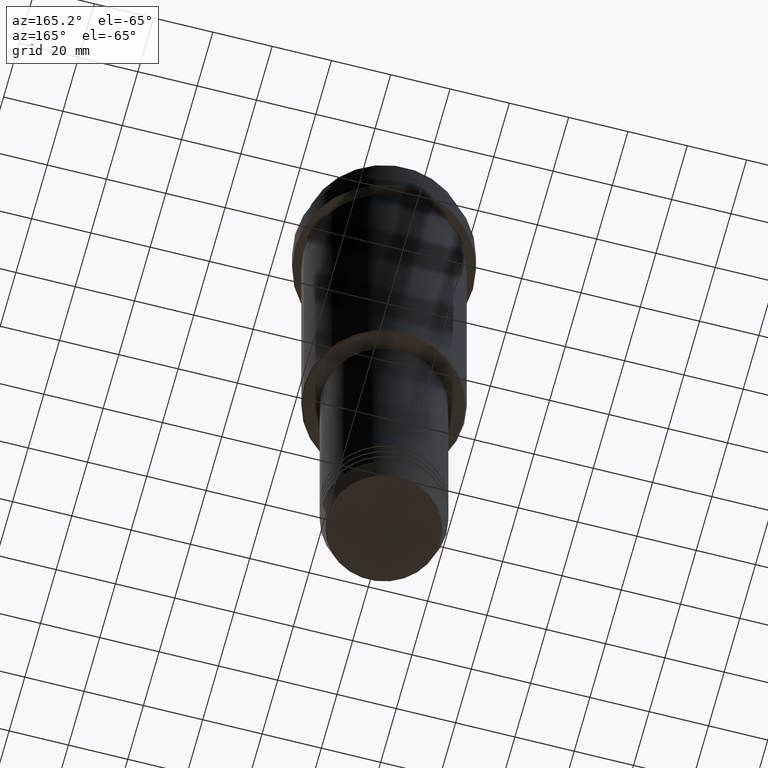
[diagram: clean part render]
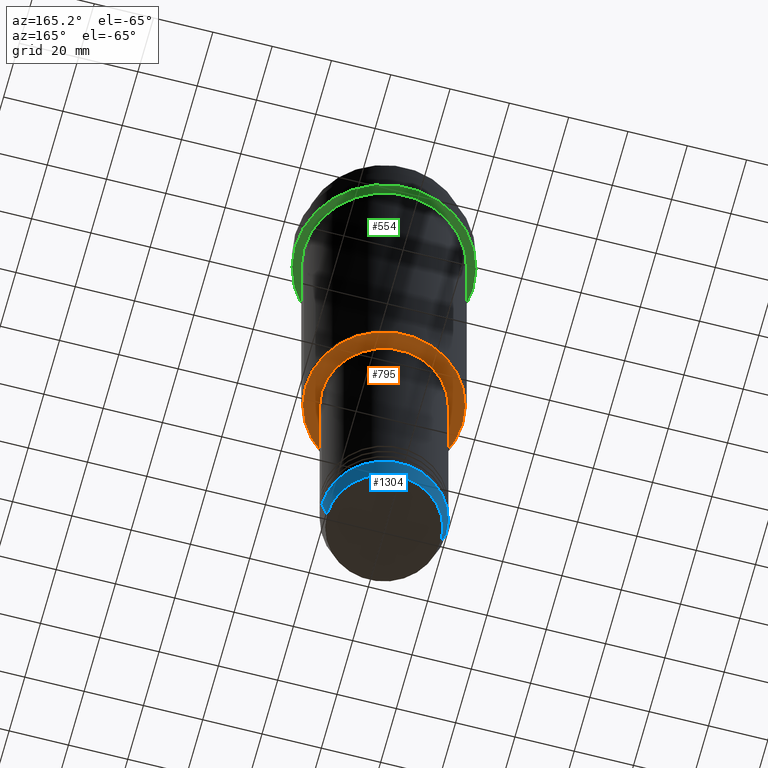
[diagram: same view with three faces highlighted in distinct colors, each labeled with its STEP entity id]
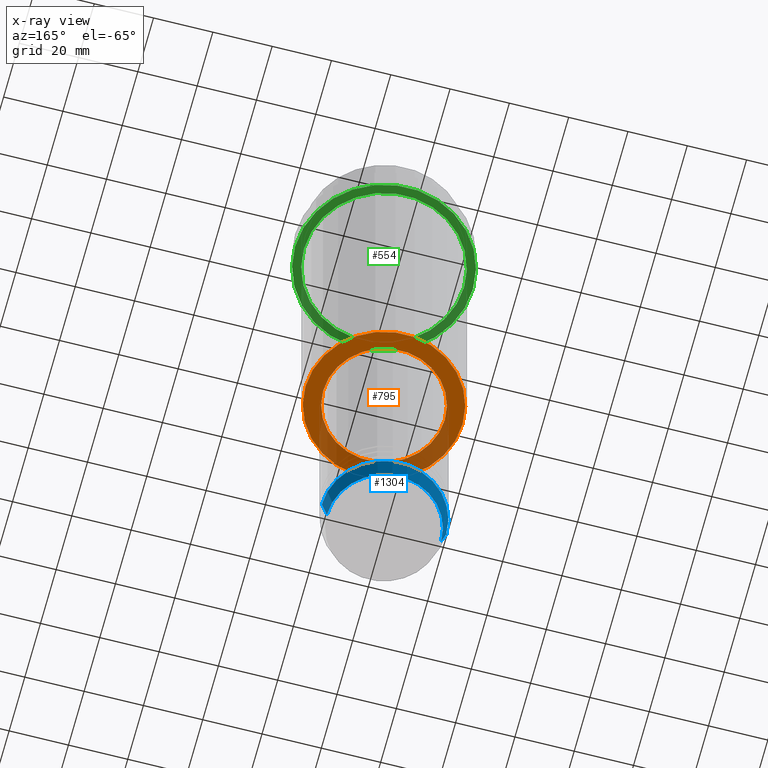
[diagram: x-ray of the same camera — body ghosted, the three highlighted faces saturated]
A machine part, auxiliary view with three faces highlighted in distinct colors.
The next image is the same camera in x-ray (body ghosted, the three faces saturated) — at least one of them is partly hidden behind the body in this view.
Their STEP definitions:

[orange] entity #795 — the highlighted planar face has unit normal (0, 0, -1).
#72 = FACE_OUTER_BOUND ( 'NONE', #487, .T. ) ;
#76 = EDGE_CURVE ( 'NONE', #82, #221, #419, .T. ) ;
#82 = VERTEX_POINT ( 'NONE', #593 ) ;
#109 = ORIENTED_EDGE ( 'NONE', *, *, #317, .T. ) ;
#110 = CIRCLE ( 'NONE', #308, 26.49999999999999645 ) ;
#161 = CARTESIAN_POINT ( 'NONE',  ( 0.000000000000000000, 0.000000000000000000, -128.0000000000000284 ) ) ;
#180 = DIRECTION ( 'NONE',  ( 0.000000000000000000, 0.000000000000000000, -1.000000000000000000 ) ) ;
#215 = DIRECTION ( 'NONE',  ( 1.000000000000000000, 0.000000000000000000, 0.000000000000000000 ) ) ;
#221 = VERTEX_POINT ( 'NONE', #995 ) ;
#270 = VERTEX_POINT ( 'NONE', #700 ) ;
#280 = DIRECTION ( 'NONE',  ( -1.000000000000000000, 0.000000000000000000, 0.000000000000000000 ) ) ;
#288 = CARTESIAN_POINT ( 'NONE',  ( 0.000000000000000000, 27.00000000000000000, -128.0000000000000284 ) ) ;
#308 = AXIS2_PLACEMENT_3D ( 'NONE', #941, #180, #280 ) ;
#317 = EDGE_CURVE ( 'NONE', #270, #927, #421, .T. ) ;
#341 = EDGE_CURVE ( 'NONE', #927, #270, #110, .T. ) ;
#419 = CIRCLE ( 'NONE', #1120, 20.50000000000000000 ) ;
#421 = CIRCLE ( 'NONE', #987, 26.49999999999999645 ) ;
#487 = EDGE_LOOP ( 'NONE', ( #1018, #109 ) ) ;
#536 = AXIS2_PLACEMENT_3D ( 'NONE', #288, #1399, #1055 ) ;
#571 = ORIENTED_EDGE ( 'NONE', *, *, #76, .T. ) ;
#593 = CARTESIAN_POINT ( 'NONE',  ( 20.50000000000000000, 0.000000000000000000, -128.0000000000000284 ) ) ;
#700 = CARTESIAN_POINT ( 'NONE',  ( -26.49999999999999645, 3.275930187719169552E-15, -128.0000000000000284 ) ) ;
#702 = DIRECTION ( 'NONE',  ( 1.000000000000000000, 0.000000000000000000, 0.000000000000000000 ) ) ;
#795 = ADVANCED_FACE ( 'NONE', ( #72, #1269 ), #837, .T. ) ;
#816 = ORIENTED_EDGE ( 'NONE', *, *, #951, .T. ) ;
#821 = DIRECTION ( 'NONE',  ( 0.000000000000000000, 0.000000000000000000, -1.000000000000000000 ) ) ;
#837 = PLANE ( 'NONE',  #536 ) ;
#846 = CARTESIAN_POINT ( 'NONE',  ( 26.49999999999999645, 0.000000000000000000, -128.0000000000000284 ) ) ;
#901 = AXIS2_PLACEMENT_3D ( 'NONE', #1405, #1084, #215 ) ;
#927 = VERTEX_POINT ( 'NONE', #846 ) ;
#929 = DIRECTION ( 'NONE',  ( -1.000000000000000000, 0.000000000000000000, 0.000000000000000000 ) ) ;
#941 = CARTESIAN_POINT ( 'NONE',  ( 0.000000000000000000, 0.000000000000000000, -128.0000000000000284 ) ) ;
#951 = EDGE_CURVE ( 'NONE', #221, #82, #1178, .T. ) ;
#987 = AXIS2_PLACEMENT_3D ( 'NONE', #1374, #821, #929 ) ;
#995 = CARTESIAN_POINT ( 'NONE',  ( -20.50000000000000000, 2.510525938252074481E-15, -128.0000000000000284 ) ) ;
#1014 = DIRECTION ( 'NONE',  ( -0.000000000000000000, -0.000000000000000000, 1.000000000000000000 ) ) ;
#1018 = ORIENTED_EDGE ( 'NONE', *, *, #341, .T. ) ;
#1055 = DIRECTION ( 'NONE',  ( -1.000000000000000000, 0.000000000000000000, -0.000000000000000000 ) ) ;
#1084 = DIRECTION ( 'NONE',  ( -0.000000000000000000, -0.000000000000000000, 1.000000000000000000 ) ) ;
#1120 = AXIS2_PLACEMENT_3D ( 'NONE', #161, #1014, #702 ) ;
#1178 = CIRCLE ( 'NONE', #901, 20.50000000000000000 ) ;
#1269 = FACE_BOUND ( 'NONE', #1341, .T. ) ;
#1341 = EDGE_LOOP ( 'NONE', ( #571, #816 ) ) ;
#1374 = CARTESIAN_POINT ( 'NONE',  ( 0.000000000000000000, 0.000000000000000000, -128.0000000000000284 ) ) ;
#1399 = DIRECTION ( 'NONE',  ( 0.000000000000000000, 0.000000000000000000, -1.000000000000000000 ) ) ;
#1405 = CARTESIAN_POINT ( 'NONE',  ( 0.000000000000000000, 0.000000000000000000, -128.0000000000000284 ) ) ;

[blue] entity #1304 — the highlighted conical surface has half-angle 15 deg.
#32 = DIRECTION ( 'NONE',  ( 0.2588190451025213501, 0.000000000000000000, 0.9659258262890680902 ) ) ;
#111 = CIRCLE ( 'NONE', #328, 21.00000000000000000 ) ;
#140 = ORIENTED_EDGE ( 'NONE', *, *, #1202, .T. ) ;
#152 = VERTEX_POINT ( 'NONE', #560 ) ;
#239 = EDGE_CURVE ( 'NONE', #152, #1214, #792, .T. ) ;
#243 = CARTESIAN_POINT ( 'NONE',  ( 21.00000000000000000, 0.000000000000000000, -216.0000000000000284 ) ) ;
#274 = DIRECTION ( 'NONE',  ( 1.000000000000000000, 0.000000000000000000, 0.000000000000000000 ) ) ;
#304 = ORIENTED_EDGE ( 'NONE', *, *, #848, .F. ) ;
#320 = DIRECTION ( 'NONE',  ( -0.000000000000000000, -0.000000000000000000, 1.000000000000000000 ) ) ;
#328 = AXIS2_PLACEMENT_3D ( 'NONE', #526, #320, #655 ) ;
#336 = CARTESIAN_POINT ( 'NONE',  ( -21.00000000000000000, 2.571758278209441661E-15, -216.0000000000000284 ) ) ;
#344 = DIRECTION ( 'NONE',  ( -0.000000000000000000, -0.000000000000000000, 1.000000000000000000 ) ) ;
#367 = VERTEX_POINT ( 'NONE', #1356 ) ;
#400 = CARTESIAN_POINT ( 'NONE',  ( -21.00000000000000000, 2.571758278209441661E-15, -216.0000000000000284 ) ) ;
#485 = CARTESIAN_POINT ( 'NONE',  ( 21.00000000000000000, 0.000000000000000000, -216.0000000000000284 ) ) ;
#520 = CIRCLE ( 'NONE', #538, 19.22365507213719127 ) ;
#526 = CARTESIAN_POINT ( 'NONE',  ( 0.000000000000000000, 0.000000000000000000, -216.0000000000000284 ) ) ;
#538 = AXIS2_PLACEMENT_3D ( 'NONE', #889, #344, #1111 ) ;
#540 = AXIS2_PLACEMENT_3D ( 'NONE', #1256, #714, #274 ) ;
#560 = CARTESIAN_POINT ( 'NONE',  ( 19.22365507213719127, 0.000000000000000000, -222.6294095225512990 ) ) ;
#619 = DIRECTION ( 'NONE',  ( -0.2588190451025213501, 3.169619151431772337E-17, 0.9659258262890680902 ) ) ;
#652 = VERTEX_POINT ( 'NONE', #336 ) ;
#655 = DIRECTION ( 'NONE',  ( 1.000000000000000000, 0.000000000000000000, 0.000000000000000000 ) ) ;
#714 = DIRECTION ( 'NONE',  ( -0.000000000000000000, -0.000000000000000000, 1.000000000000000000 ) ) ;
#792 = LINE ( 'NONE', #243, #1334 ) ;
#833 = VECTOR ( 'NONE', #619, 1000.000000000000000 ) ;
#848 = EDGE_CURVE ( 'NONE', #1214, #652, #111, .T. ) ;
#889 = CARTESIAN_POINT ( 'NONE',  ( 0.000000000000000000, 0.000000000000000000, -222.6294095225512990 ) ) ;
#928 = CONICAL_SURFACE ( 'NONE', #540, 21.00000000000000000, 0.2617993877991500740 ) ;
#933 = ORIENTED_EDGE ( 'NONE', *, *, #1145, .T. ) ;
#1046 = LINE ( 'NONE', #400, #833 ) ;
#1111 = DIRECTION ( 'NONE',  ( 1.000000000000000000, 0.000000000000000000, 0.000000000000000000 ) ) ;
#1145 = EDGE_CURVE ( 'NONE', #152, #367, #520, .T. ) ;
#1202 = EDGE_CURVE ( 'NONE', #367, #652, #1046, .T. ) ;
#1214 = VERTEX_POINT ( 'NONE', #485 ) ;
#1247 = EDGE_LOOP ( 'NONE', ( #933, #140, #304, #1353 ) ) ;
#1256 = CARTESIAN_POINT ( 'NONE',  ( 0.000000000000000000, 0.000000000000000000, -216.0000000000000284 ) ) ;
#1304 = ADVANCED_FACE ( 'NONE', ( #1369 ), #928, .T. ) ;
#1334 = VECTOR ( 'NONE', #32, 1000.000000000000000 ) ;
#1353 = ORIENTED_EDGE ( 'NONE', *, *, #239, .F. ) ;
#1356 = CARTESIAN_POINT ( 'NONE',  ( -19.22365507213719127, 2.462988521705000655E-15, -222.6294095225512990 ) ) ;
#1369 = FACE_OUTER_BOUND ( 'NONE', #1247, .T. ) ;

[green] entity #554 — the highlighted planar face has unit normal (0, 0, -1).
#6 = VERTEX_POINT ( 'NONE', #1091 ) ;
#149 = CIRCLE ( 'NONE', #948, 26.99999999999999289 ) ;
#159 = CARTESIAN_POINT ( 'NONE',  ( 0.000000000000000000, 0.000000000000000000, -22.00000000000000355 ) ) ;
#162 = CARTESIAN_POINT ( 'NONE',  ( 29.99999999999999645, 0.000000000000000000, -22.00000000000000355 ) ) ;
#167 = CARTESIAN_POINT ( 'NONE',  ( 26.99999999999999289, 3.306546357697852944E-15, -22.00000000000000000 ) ) ;
#173 = AXIS2_PLACEMENT_3D ( 'NONE', #1031, #547, #653 ) ;
#278 = ORIENTED_EDGE ( 'NONE', *, *, #334, .F. ) ;
#298 = CARTESIAN_POINT ( 'NONE',  ( 0.000000000000000000, 0.000000000000000000, -22.00000000000000355 ) ) ;
#301 = DIRECTION ( 'NONE',  ( -1.000000000000000000, 0.000000000000000000, 0.000000000000000000 ) ) ;
#312 = DIRECTION ( 'NONE',  ( 1.000000000000000000, 0.000000000000000000, 0.000000000000000000 ) ) ;
#334 = EDGE_CURVE ( 'NONE', #698, #1045, #534, .T. ) ;
#363 = ORIENTED_EDGE ( 'NONE', *, *, #499, .T. ) ;
#393 = ORIENTED_EDGE ( 'NONE', *, *, #416, .F. ) ;
#416 = EDGE_CURVE ( 'NONE', #1045, #698, #923, .T. ) ;
#438 = EDGE_LOOP ( 'NONE', ( #1193, #363 ) ) ;
#499 = EDGE_CURVE ( 'NONE', #1221, #6, #149, .T. ) ;
#504 = CARTESIAN_POINT ( 'NONE',  ( -29.99999999999999645, 3.673940397442058389E-15, -22.00000000000000355 ) ) ;
#521 = EDGE_LOOP ( 'NONE', ( #393, #278 ) ) ;
#528 = CARTESIAN_POINT ( 'NONE',  ( 0.000000000000000000, 0.000000000000000000, -22.00000000000000000 ) ) ;
#534 = CIRCLE ( 'NONE', #1358, 29.99999999999999645 ) ;
#547 = DIRECTION ( 'NONE',  ( 0.000000000000000000, 0.000000000000000000, -1.000000000000000000 ) ) ;
#554 = ADVANCED_FACE ( 'NONE', ( #1354, #596 ), #885, .T. ) ;
#578 = AXIS2_PLACEMENT_3D ( 'NONE', #298, #1388, #312 ) ;
#596 = FACE_OUTER_BOUND ( 'NONE', #521, .T. ) ;
#653 = DIRECTION ( 'NONE',  ( -1.000000000000000000, 0.000000000000000000, -0.000000000000000000 ) ) ;
#698 = VERTEX_POINT ( 'NONE', #504 ) ;
#862 = DIRECTION ( 'NONE',  ( -1.000000000000000000, 0.000000000000000000, 0.000000000000000000 ) ) ;
#885 = PLANE ( 'NONE',  #173 ) ;
#923 = CIRCLE ( 'NONE', #578, 29.99999999999999645 ) ;
#948 = AXIS2_PLACEMENT_3D ( 'NONE', #528, #1075, #862 ) ;
#1031 = CARTESIAN_POINT ( 'NONE',  ( 0.000000000000000000, 29.99999999999999645, -22.00000000000000000 ) ) ;
#1045 = VERTEX_POINT ( 'NONE', #162 ) ;
#1075 = DIRECTION ( 'NONE',  ( -0.000000000000000000, -0.000000000000000000, 1.000000000000000000 ) ) ;
#1091 = CARTESIAN_POINT ( 'NONE',  ( -26.99999999999999289, 0.000000000000000000, -22.00000000000000000 ) ) ;
#1158 = DIRECTION ( 'NONE',  ( -0.000000000000000000, -0.000000000000000000, 1.000000000000000000 ) ) ;
#1181 = CIRCLE ( 'NONE', #1386, 26.99999999999999289 ) ;
#1193 = ORIENTED_EDGE ( 'NONE', *, *, #1284, .T. ) ;
#1221 = VERTEX_POINT ( 'NONE', #167 ) ;
#1275 = DIRECTION ( 'NONE',  ( 1.000000000000000000, 0.000000000000000000, 0.000000000000000000 ) ) ;
#1280 = CARTESIAN_POINT ( 'NONE',  ( 0.000000000000000000, 0.000000000000000000, -22.00000000000000000 ) ) ;
#1284 = EDGE_CURVE ( 'NONE', #6, #1221, #1181, .T. ) ;
#1354 = FACE_BOUND ( 'NONE', #438, .T. ) ;
#1358 = AXIS2_PLACEMENT_3D ( 'NONE', #159, #1158, #1275 ) ;
#1379 = DIRECTION ( 'NONE',  ( -0.000000000000000000, -0.000000000000000000, 1.000000000000000000 ) ) ;
#1386 = AXIS2_PLACEMENT_3D ( 'NONE', #1280, #1379, #301 ) ;
#1388 = DIRECTION ( 'NONE',  ( -0.000000000000000000, -0.000000000000000000, 1.000000000000000000 ) ) ;